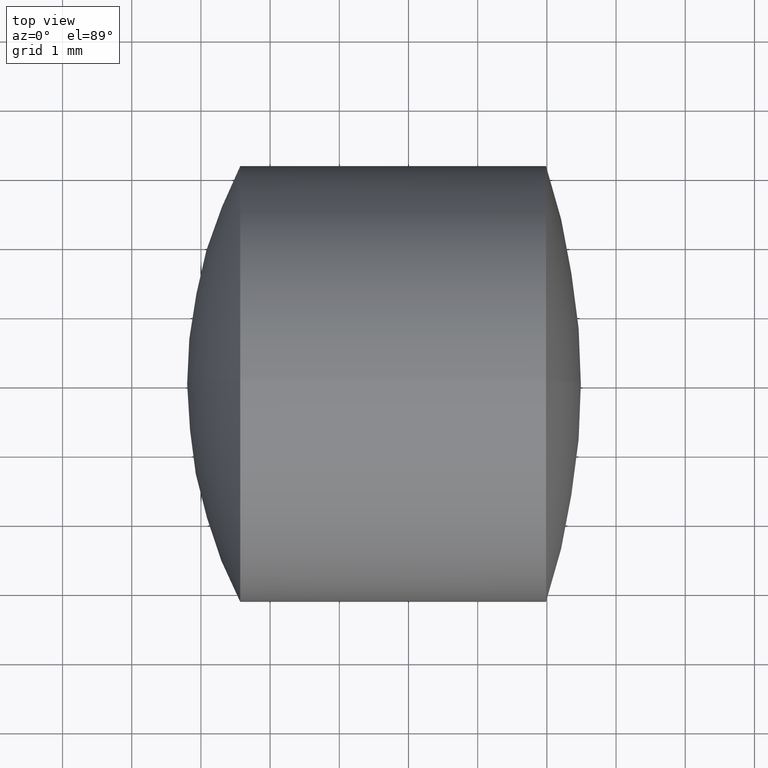
[diagram: clean part render]
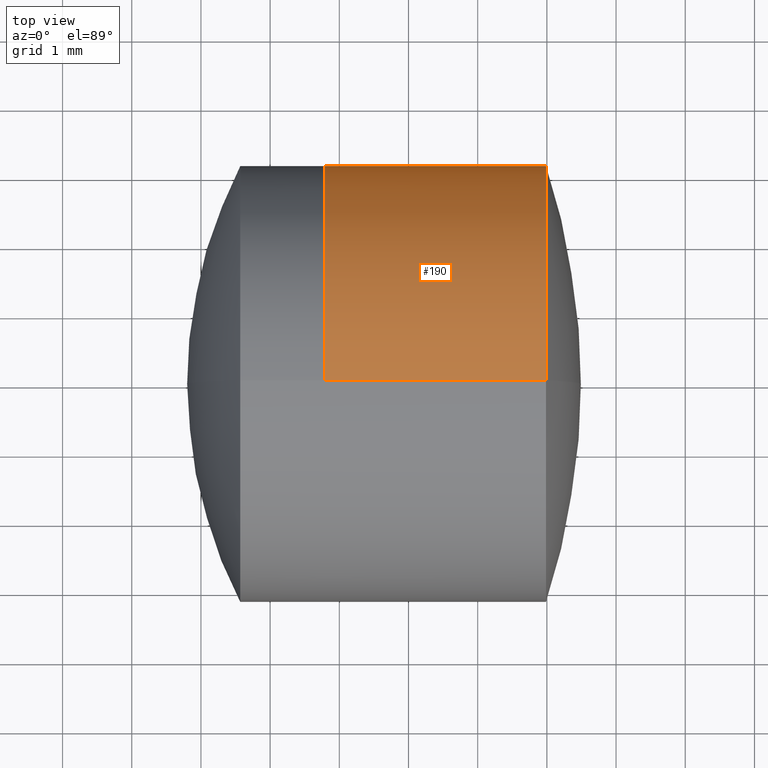
[diagram: same view with one face highlighted and labeled with its STEP entity id]
A machine part, top view. The second image highlights one B-rep face of the part: STEP entity #190.
In plain terms, the highlighted cylindrical surface (partial cylindrical patch) has radius 3.15 mm, axis along (-1, -0, -0).
Its self-contained STEP definition (entity closure, byte-faithful):
#9 = AXIS2_PLACEMENT_3D ( 'NONE', #131, #325, #158 ) ;
#13 = ORIENTED_EDGE ( 'NONE', *, *, #171, .T. ) ;
#20 = AXIS2_PLACEMENT_3D ( 'NONE', #134, #329, #161 ) ;
#29 = EDGE_LOOP ( 'NONE', ( #278, #13, #95, #136 ) ) ;
#47 = DIRECTION ( 'NONE',  ( 0.0000000000000000000, 0.0000000000000000000, 1.000000000000000000 ) ) ;
#69 = LINE ( 'NONE', #245, #138 ) ;
#85 = CARTESIAN_POINT ( 'NONE',  ( 6.986827555344063100, 3.857637417314162200E-016, -3.149999999999999500 ) ) ;
#95 = ORIENTED_EDGE ( 'NONE', *, *, #194, .F. ) ;
#96 = AXIS2_PLACEMENT_3D ( 'NONE', #347, #327, #47 ) ;
#108 = CARTESIAN_POINT ( 'NONE',  ( 3.790307587695709700, 0.0000000000000000000, 3.149999999999999900 ) ) ;
#128 = LINE ( 'NONE', #184, #336 ) ;
#131 = CARTESIAN_POINT ( 'NONE',  ( 6.986827555344063100, 0.0000000000000000000, 0.0000000000000000000 ) ) ;
#134 = CARTESIAN_POINT ( 'NONE',  ( 3.790307587695709700, 0.0000000000000000000, 0.0000000000000000000 ) ) ;
#136 = ORIENTED_EDGE ( 'NONE', *, *, #214, .F. ) ;
#138 = VECTOR ( 'NONE', #211, 1000.000000000000000 ) ;
#145 = VERTEX_POINT ( 'NONE', #297 ) ;
#146 = CIRCLE ( 'NONE', #9, 3.149999999999999500 ) ;
#158 = DIRECTION ( 'NONE',  ( 0.0000000000000000000, 0.0000000000000000000, 1.000000000000000000 ) ) ;
#159 = EDGE_CURVE ( 'NONE', #145, #296, #146, .T. ) ;
#161 = DIRECTION ( 'NONE',  ( 0.0000000000000000000, 0.0000000000000000000, 1.000000000000000000 ) ) ;
#171 = EDGE_CURVE ( 'NONE', #296, #291, #69, .T. ) ;
#184 = CARTESIAN_POINT ( 'NONE',  ( -0.5519199926577972300, 0.0000000000000000000, 3.149999999999999900 ) ) ;
#190 = ADVANCED_FACE ( 'NONE', ( #284 ), #197, .T. ) ;
#194 = EDGE_CURVE ( 'NONE', #216, #291, #219, .T. ) ;
#197 = CYLINDRICAL_SURFACE ( 'NONE', #96, 3.149999999999999900 ) ;
#211 = DIRECTION ( 'NONE',  ( -1.000000000000000000, -0.0000000000000000000, -0.0000000000000000000 ) ) ;
#213 = DIRECTION ( 'NONE',  ( -1.000000000000000000, -0.0000000000000000000, -0.0000000000000000000 ) ) ;
#214 = EDGE_CURVE ( 'NONE', #145, #216, #128, .T. ) ;
#216 = VERTEX_POINT ( 'NONE', #108 ) ;
#219 = CIRCLE ( 'NONE', #20, 3.150000000000000400 ) ;
#245 = CARTESIAN_POINT ( 'NONE',  ( -0.5519199926577972300, 3.857637417314162700E-016, -3.149999999999999900 ) ) ;
#257 = CARTESIAN_POINT ( 'NONE',  ( 3.790307587695709700, 3.857637417314162200E-016, -3.149999999999999900 ) ) ;
#278 = ORIENTED_EDGE ( 'NONE', *, *, #159, .T. ) ;
#284 = FACE_OUTER_BOUND ( 'NONE', #29, .T. ) ;
#291 = VERTEX_POINT ( 'NONE', #257 ) ;
#296 = VERTEX_POINT ( 'NONE', #85 ) ;
#297 = CARTESIAN_POINT ( 'NONE',  ( 6.986827555344063100, 0.0000000000000000000, 3.149999999999999500 ) ) ;
#325 = DIRECTION ( 'NONE',  ( -1.000000000000000000, -0.0000000000000000000, -0.0000000000000000000 ) ) ;
#327 = DIRECTION ( 'NONE',  ( -1.000000000000000000, -0.0000000000000000000, -0.0000000000000000000 ) ) ;
#329 = DIRECTION ( 'NONE',  ( -1.000000000000000000, -0.0000000000000000000, -0.0000000000000000000 ) ) ;
#336 = VECTOR ( 'NONE', #213, 1000.000000000000000 ) ;
#347 = CARTESIAN_POINT ( 'NONE',  ( -0.5519199926577972300, 0.0000000000000000000, 0.0000000000000000000 ) ) ;